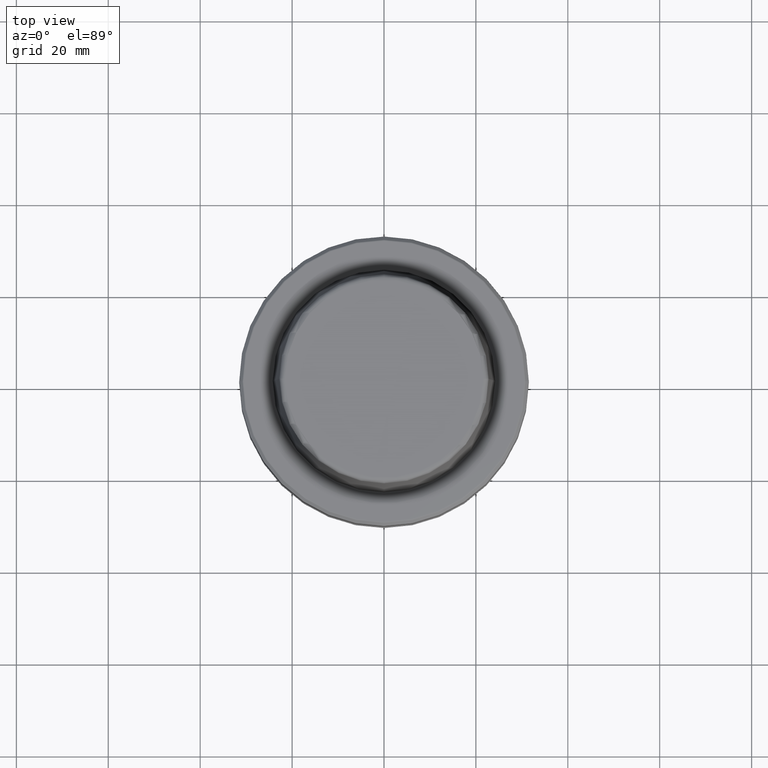
[diagram: clean part render]
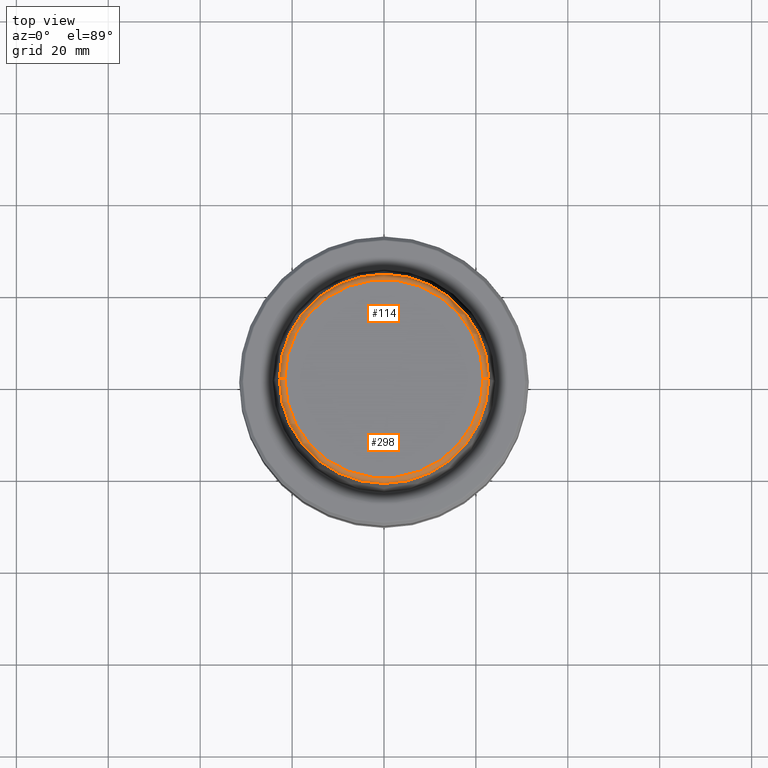
[diagram: same view with one multi-face feature highlighted, each face labeled with its STEP entity id]
A machine part, top view. The highlighted faces form ONE feature: a constant-radius fillet chain: 2 tangent blend faces with common blend radius 1.2 mm. The faces share edges in the B-rep.
Their STEP definitions:
[1] entity #114 (Torus):
#26 = CARTESIAN_POINT ( 'NONE',  ( 22.77957961851797100, 2.876386432489616700E-015, 30.76004333261571900 ) ) ;
#62 = ORIENTED_EDGE ( 'NONE', *, *, #678, .T. ) ;
#114 = ADVANCED_FACE ( 'NONE', ( #1188 ), #394, .T. ) ;
#120 = DIRECTION ( 'NONE',  ( 0.0000000000000000000, -1.000000000000000000, 0.0000000000000000000 ) ) ;
#122 = CARTESIAN_POINT ( 'NONE',  ( 0.0000000000000000000, 0.0000000000000000000, 30.76004333261571900 ) ) ;
#127 = DIRECTION ( 'NONE',  ( -0.0000000000000000000, -0.0000000000000000000, 1.000000000000000000 ) ) ;
#206 = DIRECTION ( 'NONE',  ( 1.000000000000000000, 0.0000000000000000000, 0.0000000000000000000 ) ) ;
#258 = CARTESIAN_POINT ( 'NONE',  ( 0.0000000000000000000, 0.0000000000000000000, 31.89999999999999900 ) ) ;
#274 = CARTESIAN_POINT ( 'NONE',  ( -21.58108272732117100, 2.642920388414810300E-015, 30.69999999999999200 ) ) ;
#291 = ORIENTED_EDGE ( 'NONE', *, *, #358, .T. ) ;
#315 = DIRECTION ( 'NONE',  ( 1.000000000000000000, 0.0000000000000000000, 0.0000000000000000000 ) ) ;
#344 = AXIS2_PLACEMENT_3D ( 'NONE', #699, #120, #800 ) ;
#353 = VERTEX_POINT ( 'NONE', #26 ) ;
#358 = EDGE_CURVE ( 'NONE', #353, #491, #845, .T. ) ;
#365 = DIRECTION ( 'NONE',  ( 1.000000000000000000, 0.0000000000000000000, 0.0000000000000000000 ) ) ;
#379 = DIRECTION ( 'NONE',  ( -1.000000000000000000, 1.224646799147353200E-016, 0.0000000000000000000 ) ) ;
#394 = TOROIDAL_SURFACE ( 'NONE', #962, 21.58108272732117100, 1.200000000000003100 ) ;
#395 = AXIS2_PLACEMENT_3D ( 'NONE', #122, #802, #206 ) ;
#423 = ORIENTED_EDGE ( 'NONE', *, *, #482, .F. ) ;
#441 = VERTEX_POINT ( 'NONE', #646 ) ;
#482 = EDGE_CURVE ( 'NONE', #518, #441, #714, .T. ) ;
#491 = VERTEX_POINT ( 'NONE', #855 ) ;
#518 = VERTEX_POINT ( 'NONE', #958 ) ;
#646 = CARTESIAN_POINT ( 'NONE',  ( -21.58108272732117100, 2.716307157494421400E-015, 31.89999999999999900 ) ) ;
#678 = EDGE_CURVE ( 'NONE', #491, #441, #1014, .T. ) ;
#699 = CARTESIAN_POINT ( 'NONE',  ( 21.58108272732117100, 0.0000000000000000000, 30.69999999999999200 ) ) ;
#714 = CIRCLE ( 'NONE', #992, 21.58108272732117100 ) ;
#763 = AXIS2_PLACEMENT_3D ( 'NONE', #274, #969, #379 ) ;
#800 = DIRECTION ( 'NONE',  ( 0.0000000000000000000, 0.0000000000000000000, -1.000000000000000000 ) ) ;
#802 = DIRECTION ( 'NONE',  ( -0.0000000000000000000, -0.0000000000000000000, 1.000000000000000000 ) ) ;
#845 = CIRCLE ( 'NONE', #395, 22.77957961851797100 ) ;
#848 = CARTESIAN_POINT ( 'NONE',  ( 0.0000000000000000000, 0.0000000000000000000, 30.69999999999999200 ) ) ;
#855 = CARTESIAN_POINT ( 'NONE',  ( -22.77957961851797100, 0.0000000000000000000, 30.76004333261571900 ) ) ;
#945 = EDGE_CURVE ( 'NONE', #353, #518, #1239, .T. ) ;
#955 = DIRECTION ( 'NONE',  ( -0.0000000000000000000, -0.0000000000000000000, 1.000000000000000000 ) ) ;
#958 = CARTESIAN_POINT ( 'NONE',  ( 21.58108272732117100, 0.0000000000000000000, 31.89999999999999900 ) ) ;
#962 = AXIS2_PLACEMENT_3D ( 'NONE', #848, #127, #315 ) ;
#969 = DIRECTION ( 'NONE',  ( 1.224646799147353200E-016, 1.000000000000000000, 0.0000000000000000000 ) ) ;
#992 = AXIS2_PLACEMENT_3D ( 'NONE', #258, #955, #365 ) ;
#1014 = CIRCLE ( 'NONE', #763, 1.200000000000003100 ) ;
#1057 = ORIENTED_EDGE ( 'NONE', *, *, #945, .F. ) ;
#1188 = FACE_OUTER_BOUND ( 'NONE', #1237, .T. ) ;
#1237 = EDGE_LOOP ( 'NONE', ( #291, #62, #423, #1057 ) ) ;
#1239 = CIRCLE ( 'NONE', #344, 1.200000000000003100 ) ;
[2] entity #298 (Torus):
#26 = CARTESIAN_POINT ( 'NONE',  ( 22.77957961851797100, 2.876386432489616700E-015, 30.76004333261571900 ) ) ;
#88 = AXIS2_PLACEMENT_3D ( 'NONE', #734, #343, #1038 ) ;
#120 = DIRECTION ( 'NONE',  ( 0.0000000000000000000, -1.000000000000000000, 0.0000000000000000000 ) ) ;
#175 = ORIENTED_EDGE ( 'NONE', *, *, #735, .T. ) ;
#192 = CIRCLE ( 'NONE', #545, 21.58108272732117100 ) ;
#250 = ORIENTED_EDGE ( 'NONE', *, *, #994, .F. ) ;
#274 = CARTESIAN_POINT ( 'NONE',  ( -21.58108272732117100, 2.642920388414810300E-015, 30.69999999999999200 ) ) ;
#280 = CARTESIAN_POINT ( 'NONE',  ( 0.0000000000000000000, 0.0000000000000000000, 30.76004333261571900 ) ) ;
#298 = ADVANCED_FACE ( 'NONE', ( #609 ), #1146, .T. ) ;
#314 = DIRECTION ( 'NONE',  ( -0.0000000000000000000, -0.0000000000000000000, 1.000000000000000000 ) ) ;
#343 = DIRECTION ( 'NONE',  ( -0.0000000000000000000, -0.0000000000000000000, 1.000000000000000000 ) ) ;
#344 = AXIS2_PLACEMENT_3D ( 'NONE', #699, #120, #800 ) ;
#353 = VERTEX_POINT ( 'NONE', #26 ) ;
#379 = DIRECTION ( 'NONE',  ( -1.000000000000000000, 1.224646799147353200E-016, 0.0000000000000000000 ) ) ;
#383 = DIRECTION ( 'NONE',  ( 1.000000000000000000, 0.0000000000000000000, 0.0000000000000000000 ) ) ;
#441 = VERTEX_POINT ( 'NONE', #646 ) ;
#491 = VERTEX_POINT ( 'NONE', #855 ) ;
#518 = VERTEX_POINT ( 'NONE', #958 ) ;
#545 = AXIS2_PLACEMENT_3D ( 'NONE', #905, #314, #1002 ) ;
#609 = FACE_OUTER_BOUND ( 'NONE', #804, .T. ) ;
#646 = CARTESIAN_POINT ( 'NONE',  ( -21.58108272732117100, 2.716307157494421400E-015, 31.89999999999999900 ) ) ;
#678 = EDGE_CURVE ( 'NONE', #491, #441, #1014, .T. ) ;
#699 = CARTESIAN_POINT ( 'NONE',  ( 21.58108272732117100, 0.0000000000000000000, 30.69999999999999200 ) ) ;
#734 = CARTESIAN_POINT ( 'NONE',  ( 0.0000000000000000000, 0.0000000000000000000, 30.69999999999999200 ) ) ;
#735 = EDGE_CURVE ( 'NONE', #491, #353, #1215, .T. ) ;
#763 = AXIS2_PLACEMENT_3D ( 'NONE', #274, #969, #379 ) ;
#765 = ORIENTED_EDGE ( 'NONE', *, *, #945, .T. ) ;
#800 = DIRECTION ( 'NONE',  ( 0.0000000000000000000, 0.0000000000000000000, -1.000000000000000000 ) ) ;
#804 = EDGE_LOOP ( 'NONE', ( #933, #175, #765, #250 ) ) ;
#836 = AXIS2_PLACEMENT_3D ( 'NONE', #280, #974, #383 ) ;
#855 = CARTESIAN_POINT ( 'NONE',  ( -22.77957961851797100, 0.0000000000000000000, 30.76004333261571900 ) ) ;
#905 = CARTESIAN_POINT ( 'NONE',  ( 0.0000000000000000000, 0.0000000000000000000, 31.89999999999999900 ) ) ;
#933 = ORIENTED_EDGE ( 'NONE', *, *, #678, .F. ) ;
#945 = EDGE_CURVE ( 'NONE', #353, #518, #1239, .T. ) ;
#958 = CARTESIAN_POINT ( 'NONE',  ( 21.58108272732117100, 0.0000000000000000000, 31.89999999999999900 ) ) ;
#969 = DIRECTION ( 'NONE',  ( 1.224646799147353200E-016, 1.000000000000000000, 0.0000000000000000000 ) ) ;
#974 = DIRECTION ( 'NONE',  ( -0.0000000000000000000, -0.0000000000000000000, 1.000000000000000000 ) ) ;
#994 = EDGE_CURVE ( 'NONE', #441, #518, #192, .T. ) ;
#1002 = DIRECTION ( 'NONE',  ( 1.000000000000000000, 0.0000000000000000000, 0.0000000000000000000 ) ) ;
#1014 = CIRCLE ( 'NONE', #763, 1.200000000000003100 ) ;
#1038 = DIRECTION ( 'NONE',  ( 1.000000000000000000, 0.0000000000000000000, 0.0000000000000000000 ) ) ;
#1146 = TOROIDAL_SURFACE ( 'NONE', #88, 21.58108272732117100, 1.200000000000003100 ) ;
#1215 = CIRCLE ( 'NONE', #836, 22.77957961851797100 ) ;
#1239 = CIRCLE ( 'NONE', #344, 1.200000000000003100 ) ;